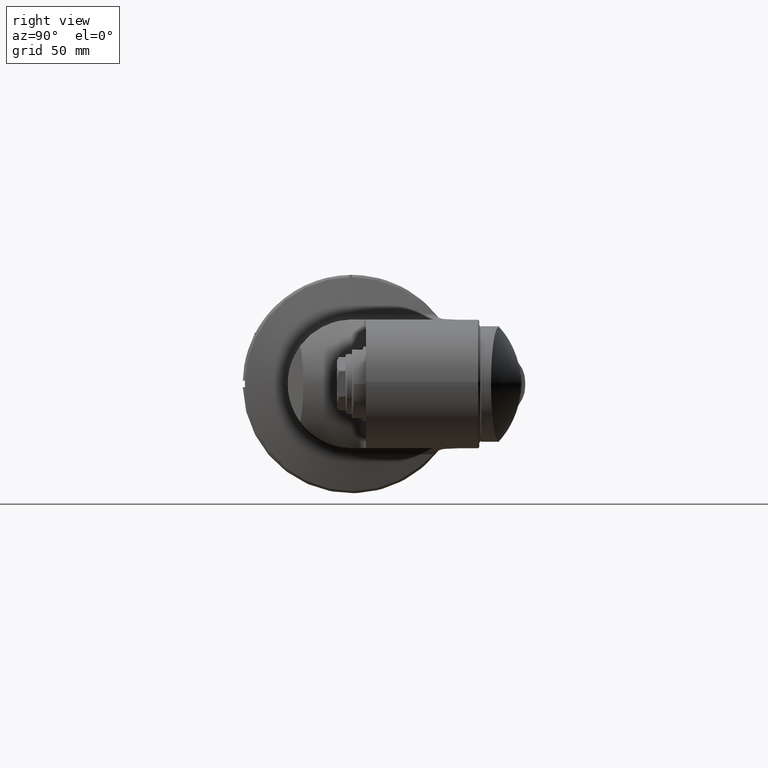
[diagram: clean part render]
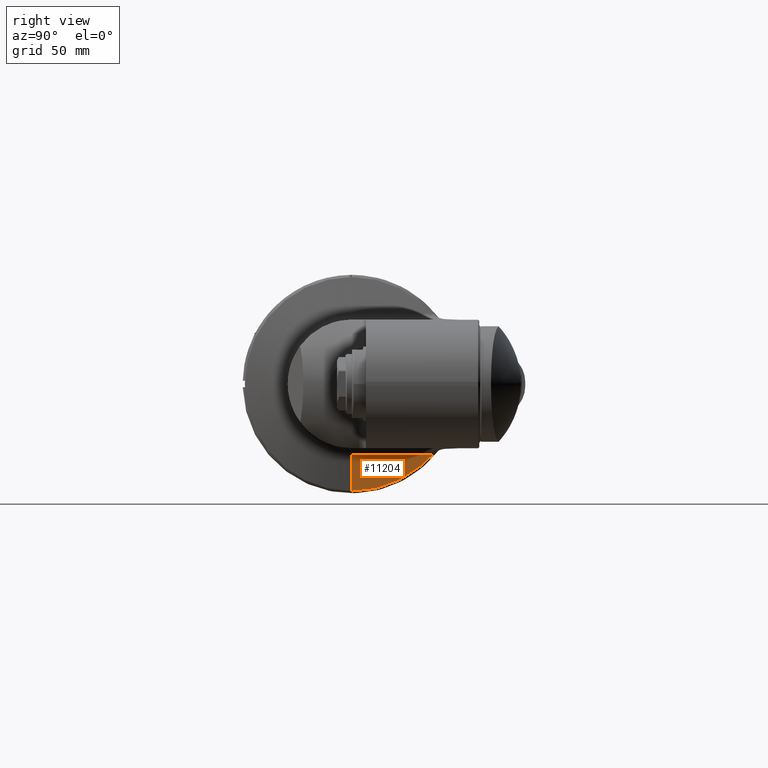
[diagram: same view with one face highlighted and labeled with its STEP entity id]
A machine part, right view. The second image highlights one B-rep face of the part: STEP entity #11204.
In plain terms, the highlighted planar face has unit normal (-0.9659, 0, 0.2588).
Its self-contained STEP definition (entity closure, byte-faithful):
#222=B_SPLINE_CURVE_WITH_KNOTS('',3,(#17172,#17173,#17174,#17175,#17176,
#17177),.UNSPECIFIED.,.F.,.F.,(4,2,4),(-15.8175295815273,-15.4449859715338,
-14.9843780451207),.UNSPECIFIED.);
#684=PLANE('',#12009);
#997=FACE_OUTER_BOUND('',#1721,.T.);
#1721=EDGE_LOOP('',(#7689,#7690,#7691,#7692));
#2550=LINE('',#17027,#3314);
#2568=LINE('',#17162,#3332);
#3314=VECTOR('',#13445,17.6362156562904);
#3332=VECTOR('',#13493,38.00632143183);
#4071=ELLIPSE('',#11969,51.7638090205038,50.);
#4770=VERTEX_POINT('',#16977);
#4772=VERTEX_POINT('',#16980);
#4786=VERTEX_POINT('',#17024);
#4817=VERTEX_POINT('',#17161);
#5894=EDGE_CURVE('',#4772,#4770,#4071,.T.);
#5916=EDGE_CURVE('',#4772,#4786,#2550,.T.);
#5954=EDGE_CURVE('',#4786,#4817,#2568,.T.);
#5956=EDGE_CURVE('',#4817,#4770,#222,.T.);
#7689=ORIENTED_EDGE('',*,*,#5954,.F.);
#7690=ORIENTED_EDGE('',*,*,#5916,.F.);
#7691=ORIENTED_EDGE('',*,*,#5894,.T.);
#7692=ORIENTED_EDGE('',*,*,#5956,.F.);
#11204=ADVANCED_FACE('',(#997),#684,.F.);
#11969=AXIS2_PLACEMENT_3D('',#16981,#13388,#13389);
#12009=AXIS2_PLACEMENT_3D('',#17171,#13494,#13495);
#13388=DIRECTION('center_axis',(0.965925826289076,0.,-0.258819045102493));
#13389=DIRECTION('ref_axis',(-0.258819045102493,0.,-0.965925826289076));
#13445=DIRECTION('',(0.258819045102493,4.1256889903369E-14,0.965925826289076));
#13493=DIRECTION('',(0.,1.,0.));
#13494=DIRECTION('center_axis',(-0.965925826289076,0.,0.258819045102493));
#13495=DIRECTION('ref_axis',(0.258819045102493,0.,0.965925826289076));
#16977=CARTESIAN_POINT('',(-94.06930797934,31.62006059943,-38.73205090992));
#16980=CARTESIAN_POINT('',(-97.08854583838,0.,-50.));
#16981=CARTESIAN_POINT('Origin',(-83.6910862168231,0.,0.));
#17024=CARTESIAN_POINT('',(-92.523957343,0.,-32.96472381959));
#17027=CARTESIAN_POINT('',(-97.08854583838,-7.243251704225E-13,-50.));
#17161=CARTESIAN_POINT('',(-92.523957343,38.00632143183,-32.96472381959));
#17162=CARTESIAN_POINT('',(-92.523957343,0.,-32.96472381959));
#17171=CARTESIAN_POINT('Origin',(-105.25968497624,70.4940024,-80.49510641822));
#17172=CARTESIAN_POINT('Ctrl Pts',(-92.5239573429966,38.0063214318305,-32.9647238195914));
#17173=CARTESIAN_POINT('Ctrl Pts',(-92.7754949133451,37.0526293815273,-33.9034748121444));
#17174=CARTESIAN_POINT('Ctrl Pts',(-93.0194565688113,36.0951583473461,-34.8139521054432));
#17175=CARTESIAN_POINT('Ctrl Pts',(-93.5136459662289,34.0785100968071,-36.6582920451675));
#17176=CARTESIAN_POINT('Ctrl Pts',(-93.7936607419125,32.8801721368092,-37.7033214148888));
#17177=CARTESIAN_POINT('Ctrl Pts',(-94.0693079793357,31.6200605994278,-38.7320509099184));